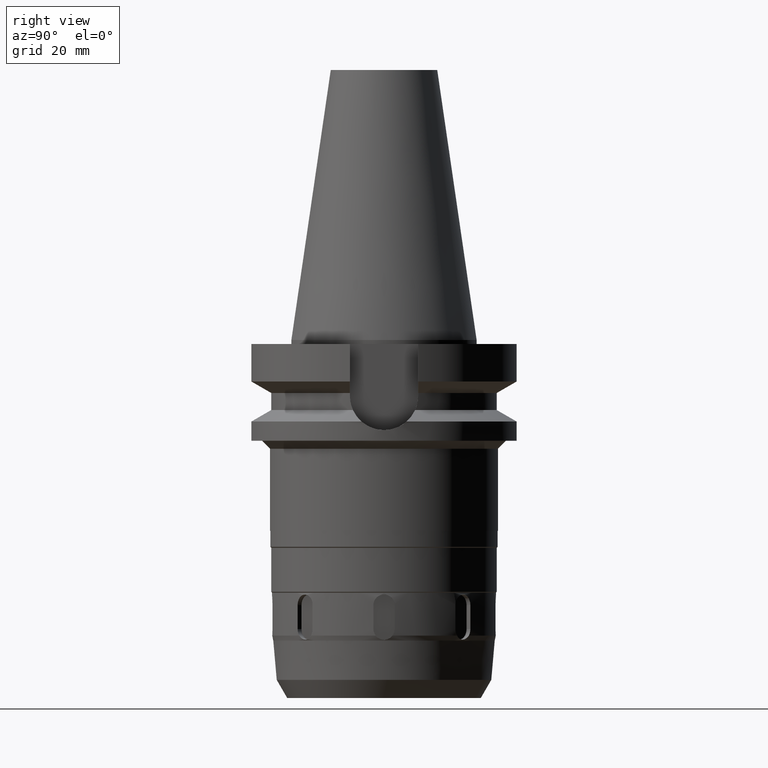
[diagram: clean part render]
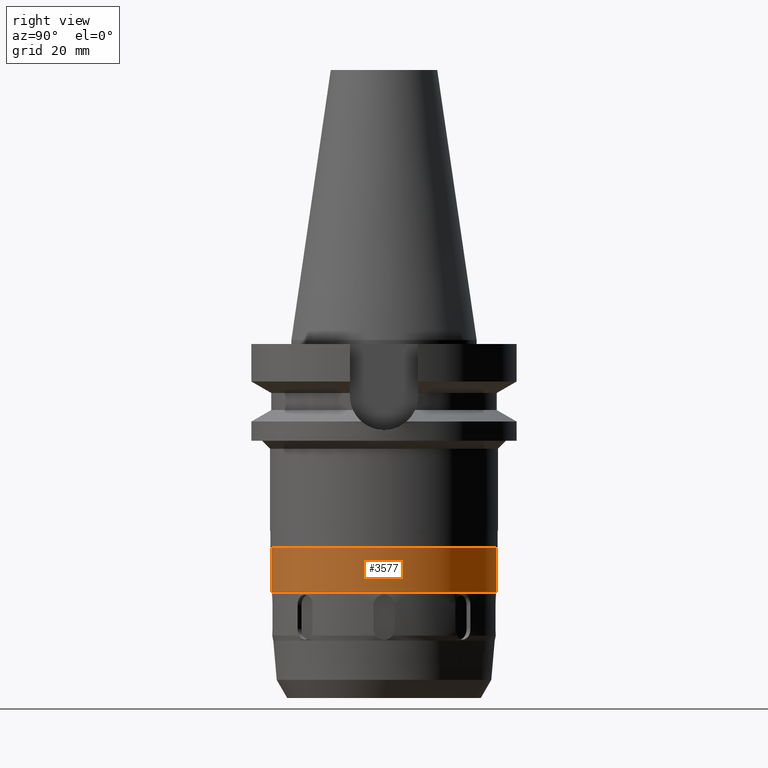
[diagram: same view with one face highlighted and labeled with its STEP entity id]
A machine part, right view. The second image highlights one B-rep face of the part: STEP entity #3577.
In plain terms, the highlighted cylindrical surface (partial cylindrical patch) has radius 42.5 mm, axis along (0, 0, -1).
Its self-contained STEP definition (entity closure, byte-faithful):
#1223=CARTESIAN_POINT('',(0.E0,0.E0,-9.5E1));
#1224=DIRECTION('',(0.E0,0.E0,1.E0));
#1225=DIRECTION('',(0.E0,-1.E0,0.E0));
#1226=AXIS2_PLACEMENT_3D('',#1223,#1224,#1225);
#1254=DIRECTION('',(0.E0,0.E0,-1.E0));
#1255=VECTOR('',#1254,1.665E1);
#1256=CARTESIAN_POINT('',(0.E0,-4.25E1,-7.835E1));
#1257=LINE('',#1256,#1255);
#1261=DIRECTION('',(0.E0,0.E0,-1.E0));
#1262=VECTOR('',#1261,1.665E1);
#1263=CARTESIAN_POINT('',(0.E0,4.25E1,-7.835E1));
#1264=LINE('',#1263,#1262);
#1275=CARTESIAN_POINT('',(0.E0,0.E0,-7.835E1));
#1276=DIRECTION('',(0.E0,0.E0,-1.E0));
#1277=DIRECTION('',(0.E0,1.E0,0.E0));
#1278=AXIS2_PLACEMENT_3D('',#1275,#1276,#1277);
#2648=CARTESIAN_POINT('',(0.E0,4.25E1,-9.5E1));
#2649=VERTEX_POINT('',#2648);
#2650=CARTESIAN_POINT('',(0.E0,-4.25E1,-9.5E1));
#2651=VERTEX_POINT('',#2650);
#2652=CARTESIAN_POINT('',(0.E0,4.25E1,-7.835E1));
#2653=VERTEX_POINT('',#2652);
#2654=CARTESIAN_POINT('',(0.E0,-4.25E1,-7.835E1));
#2655=VERTEX_POINT('',#2654);
#3565=CARTESIAN_POINT('',(0.E0,2.616335421698E-14,1.1364E2));
#3566=DIRECTION('',(0.E0,0.E0,-1.E0));
#3567=DIRECTION('',(0.E0,-1.E0,0.E0));
#3568=AXIS2_PLACEMENT_3D('',#3565,#3566,#3567);
#3569=CYLINDRICAL_SURFACE('',#3568,4.25E1);
#3570=ORIENTED_EDGE('',*,*,#3555,.T.);
#3571=ORIENTED_EDGE('',*,*,#3532,.F.);
#3572=ORIENTED_EDGE('',*,*,#3559,.F.);
#3574=ORIENTED_EDGE('',*,*,#3573,.F.);
#3575=EDGE_LOOP('',(#3570,#3571,#3572,#3574));
#3576=FACE_OUTER_BOUND('',#3575,.F.);
#1227=CIRCLE('',#1226,4.25E1);
#1279=CIRCLE('',#1278,4.25E1);
#3532=EDGE_CURVE('',#2651,#2649,#1227,.T.);
#3555=EDGE_CURVE('',#2653,#2649,#1264,.T.);
#3559=EDGE_CURVE('',#2655,#2651,#1257,.T.);
#3573=EDGE_CURVE('',#2653,#2655,#1279,.T.);
#3577=ADVANCED_FACE('',(#3576),#3569,.T.);